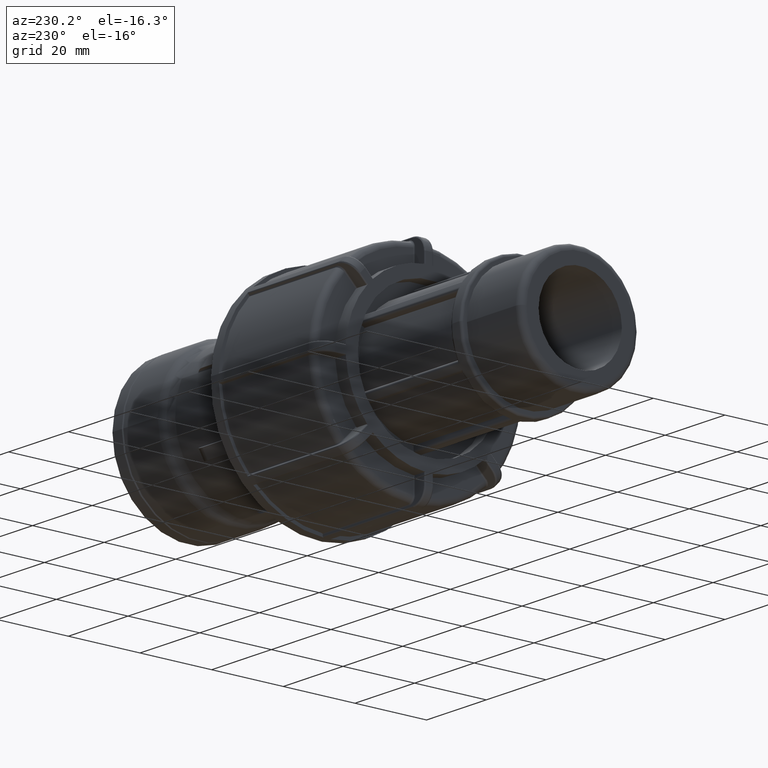
[diagram: clean part render]
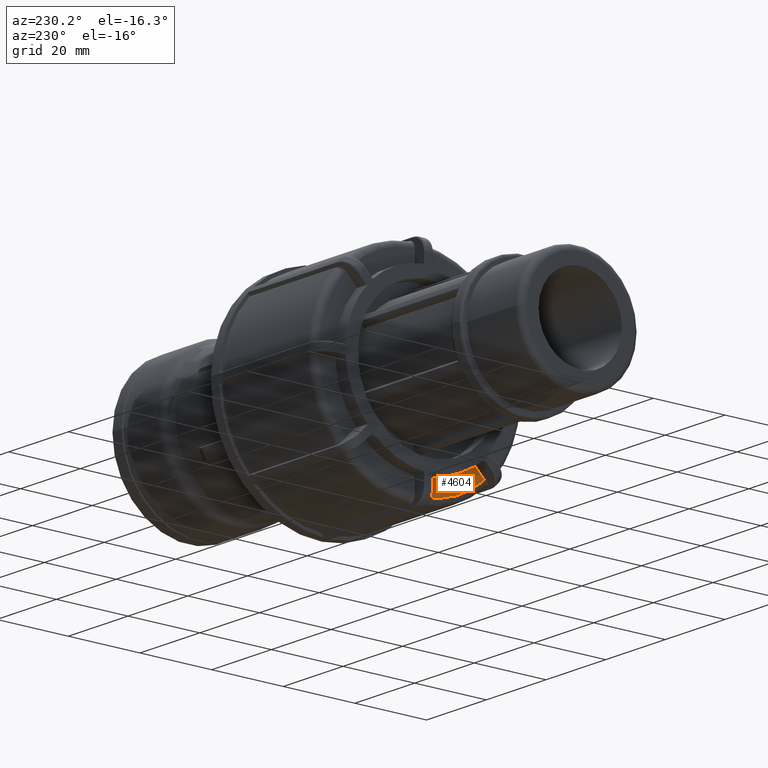
[diagram: same view with one face highlighted and labeled with its STEP entity id]
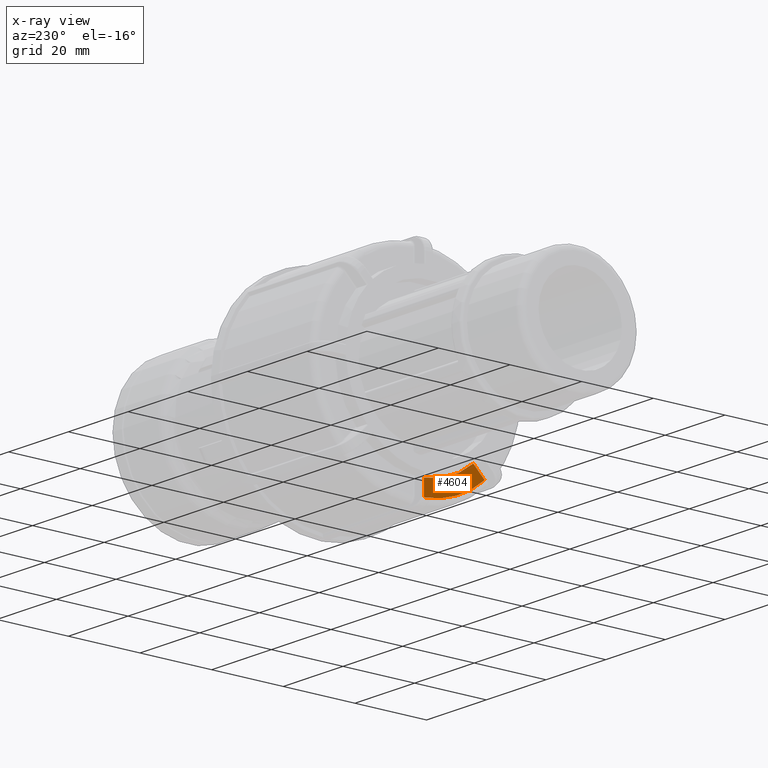
[diagram: x-ray of the same camera — body ghosted, the highlighted face saturated]
A machine part, auxiliary view. The second image highlights one B-rep face of the part: STEP entity #4604.
The next image is the same camera in x-ray: the body ghosted, the highlighted face saturated — about 0% of this face is hidden behind the body in this view.
In plain terms, the highlighted planar face has unit normal (-1, 0, 0).
Its self-contained STEP definition (entity closure, byte-faithful):
#149=PLANE('',#5088);
#320=LINE('',#7838,#599);
#343=LINE('',#8189,#622);
#599=VECTOR('',#5757,4.41359345346749);
#622=VECTOR('',#5858,4.4135934534677);
#1089=FACE_OUTER_BOUND('',#1375,.T.);
#1375=EDGE_LOOP('',(#4270,#4271,#4272,#4273));
#1713=CIRCLE('',#4902,23.2743);
#1801=CIRCLE('',#5082,27.68005);
#2096=VERTEX_POINT('',#7823);
#2098=VERTEX_POINT('',#7836);
#2131=VERTEX_POINT('',#8170);
#2132=VERTEX_POINT('',#8178);
#2640=EDGE_CURVE('',#2098,#2096,#320,.T.);
#2700=EDGE_CURVE('',#2132,#2131,#343,.T.);
#2701=EDGE_CURVE('',#2132,#2096,#1713,.T.);
#2939=EDGE_CURVE('',#2131,#2098,#1801,.T.);
#4270=ORIENTED_EDGE('',*,*,#2640,.F.);
#4271=ORIENTED_EDGE('',*,*,#2939,.F.);
#4272=ORIENTED_EDGE('',*,*,#2700,.F.);
#4273=ORIENTED_EDGE('',*,*,#2701,.T.);
#4604=ADVANCED_FACE('',(#1089),#149,.T.);
#4902=AXIS2_PLACEMENT_3D('',#8191,#5861,#5862);
#5082=AXIS2_PLACEMENT_3D('',#9480,#6312,#6313);
#5088=AXIS2_PLACEMENT_3D('',#9486,#6324,#6325);
#5757=DIRECTION('',(0.,2.77555756156289E-16,1.));
#5858=DIRECTION('',(0.,-0.707106781186548,-0.707106781186547));
#5861=DIRECTION('center_axis',(1.,0.,0.));
#5862=DIRECTION('ref_axis',(0.,0.,-1.));
#6312=DIRECTION('center_axis',(1.,0.,0.));
#6313=DIRECTION('ref_axis',(0.,-1.,1.83697019872103E-16));
#6324=DIRECTION('center_axis',(-1.,0.,0.));
#6325=DIRECTION('ref_axis',(0.,0.,1.));
#7823=CARTESIAN_POINT('',(-77.2725,-1.51250000000002,-23.2251024591927));
#7836=CARTESIAN_POINT('',(-77.2725,-1.51250000000002,-27.6386959126602));
#7838=CARTESIAN_POINT('',(-77.2725,-1.51250000000001,-9.9747));
#8170=CARTESIAN_POINT('',(-77.2725,-18.4740102964505,-20.6130083095397));
#8178=CARTESIAN_POINT('',(-77.2725,-15.3531284361029,-17.4921264491922));
#8189=CARTESIAN_POINT('',(-77.2725,-2.28130664171203,-4.42030465480135));
#8191=CARTESIAN_POINT('Origin',(-77.2725,0.,0.));
#9480=CARTESIAN_POINT('Origin',(-77.2725,0.,0.));
#9486=CARTESIAN_POINT('Origin',(-77.2725,29.3425,0.));